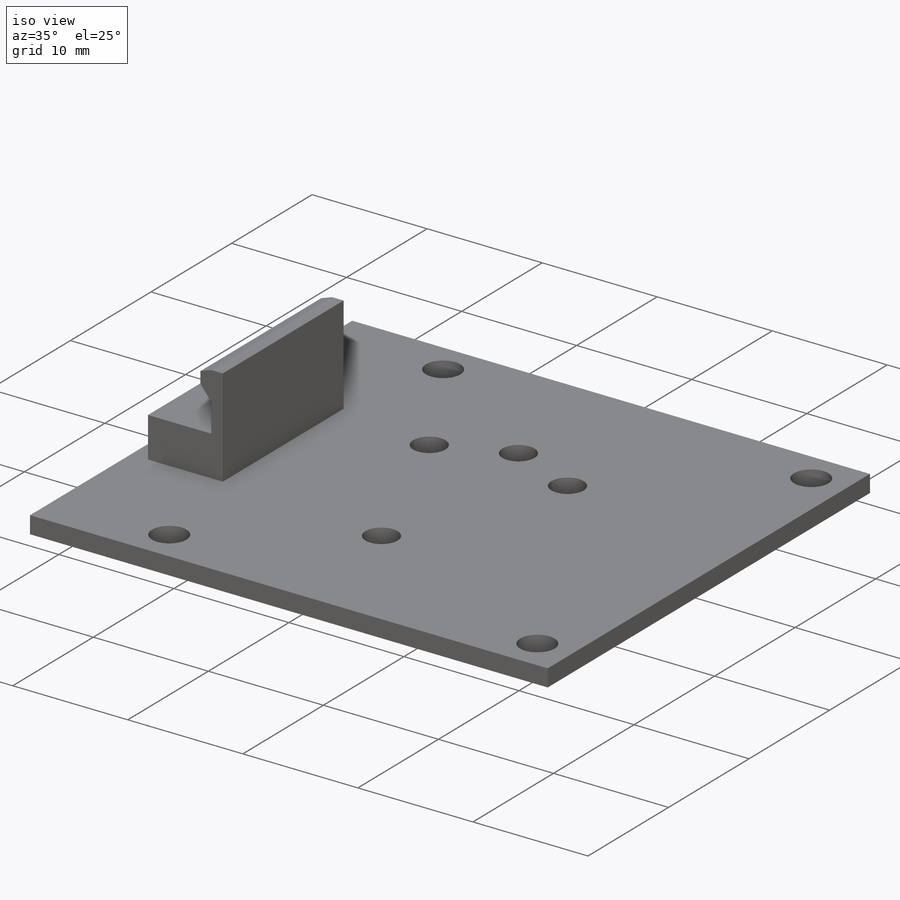
[diagram: iso view]
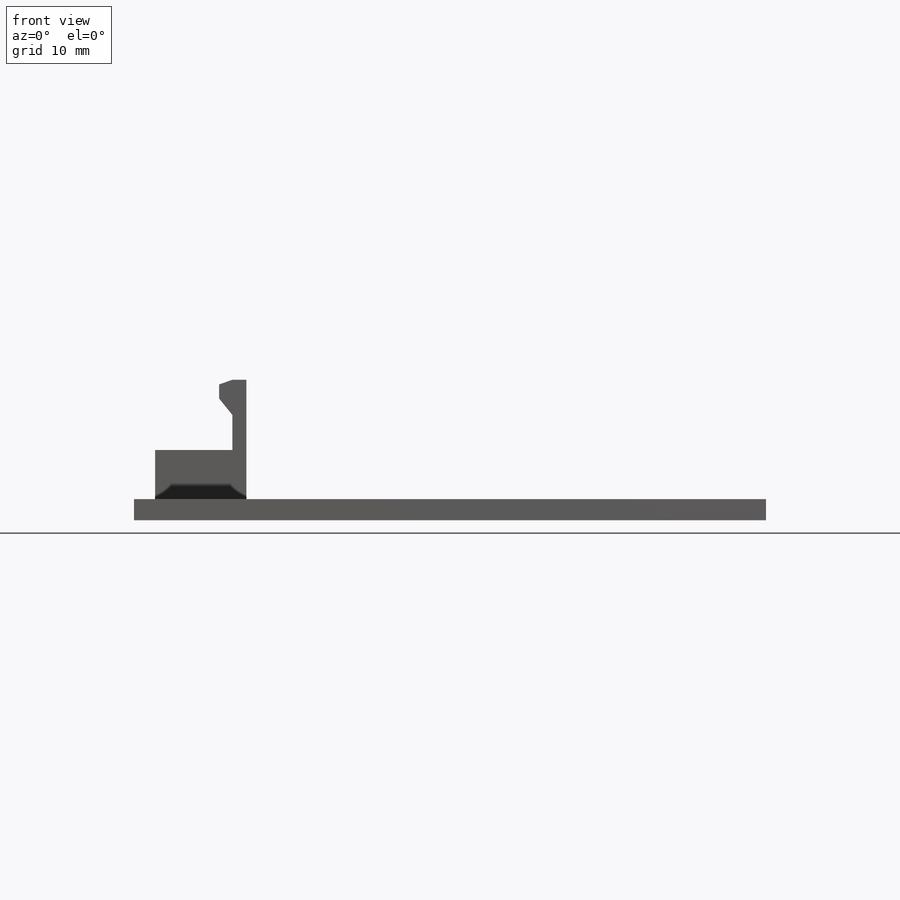
[diagram: front view]
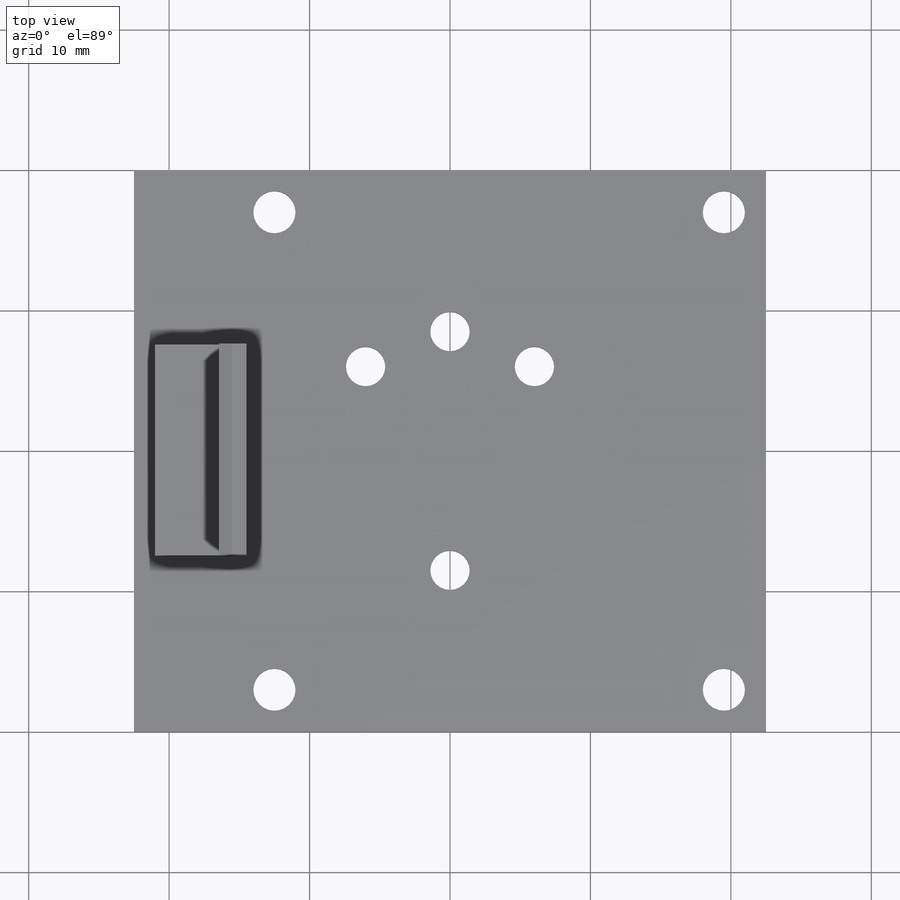
[diagram: top view]
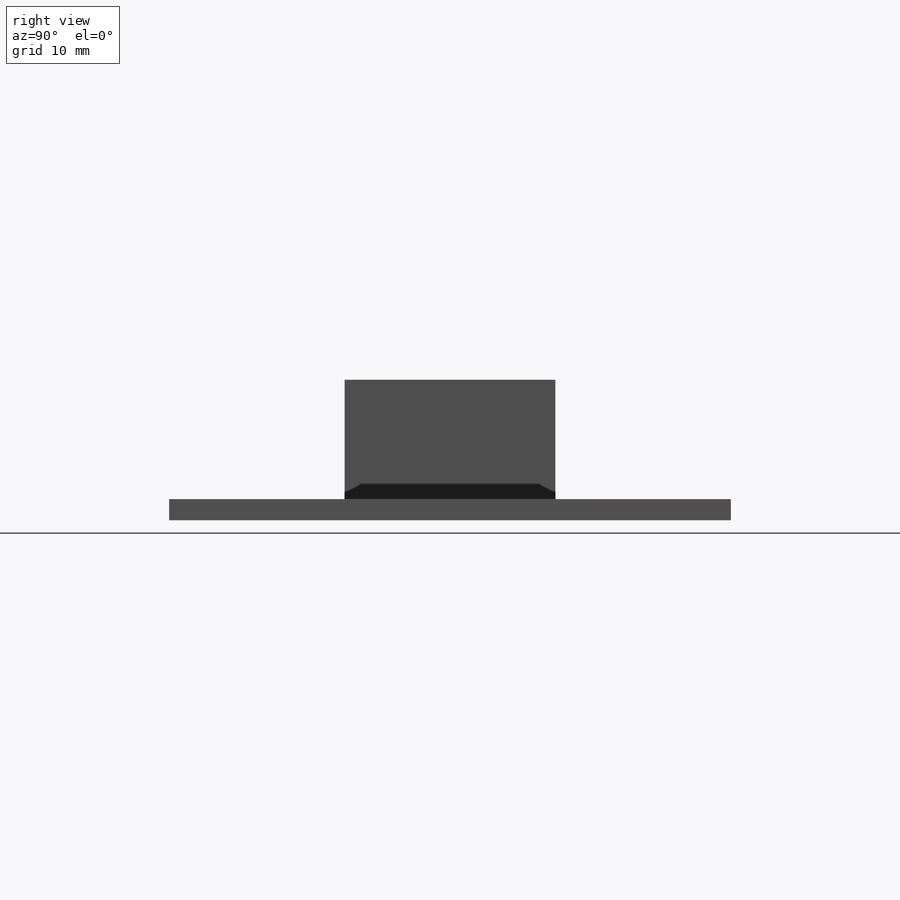
[diagram: right view]
SOLIDWORKS PART (.sldprt)
format: sldprt  version: not decoded by parser v0  size: 230,912 bytes
history: native  units: mm
features: sketch x6, extrude x4, cut_extrude x2, plane x2, material x1 (+13 scaffold rows collapsed)
feature tree (28):
  scaffold x13  (default folders/planes/origin — collapsed)
  material  "Material <not specified>"
  sketch  "Sketch2"  dims[D1=40.0mm D2=45.0mm]
  extrude  "Boss-Extrude2"  Depth=1.5mm
  sketch  "Sketch4"  dims[c1.D1=~1.780991mm c1.D2=45.0deg c2.D1=8.0]
  cut_extrude  "Cut-Extrude1"  [1 undecoded]
  sketch  "Sketch5"  dims[D1=15.0mm D2=1.5mm D3=6.5mm D4=12.5mm]
  extrude  "Boss-Extrude3"  Depth=3.5mm
  plane  "Plane1"  Offset=0mm
  sketch  "Sketch6"  dims[D1=1.0mm]
  extrude  "Boss-Extrude4"  Depth=5mm
  plane  "Plane2"  Offset=0mm
  sketch  "Sketch7"  dims[D1=1.0mm D2=1.0mm D3=1.5mm D4=0.0mm]
  extrude  "Boss-Extrude5"  Depth=15mm
  sketch  "Sketch9"  dims[c1.D1=~1.175393mm c1.D3=~2.15062mm c1.D5=~1.667616mm c1.D7=~2.349665mm c2.D1=10.0mm c2.D2=3.0mm c2.D3=3.0mm c2.D4=~10.440307mm c3.D3=3.0mm c3.D4=10.0mm c3.D5=3.0mm c3.D6=3.0mm c3.D7=3.0mm]
  cut_extrude  "Cut-Extrude2"  [1 undecoded]
decode coverage: 10 of 12 modeling features carry decoded parameters
note: ~ marks probable driven/reference dimensions
note: 2 parameter values undecoded
note: suppression state not decoded; provenance and decode notes live in map.json
